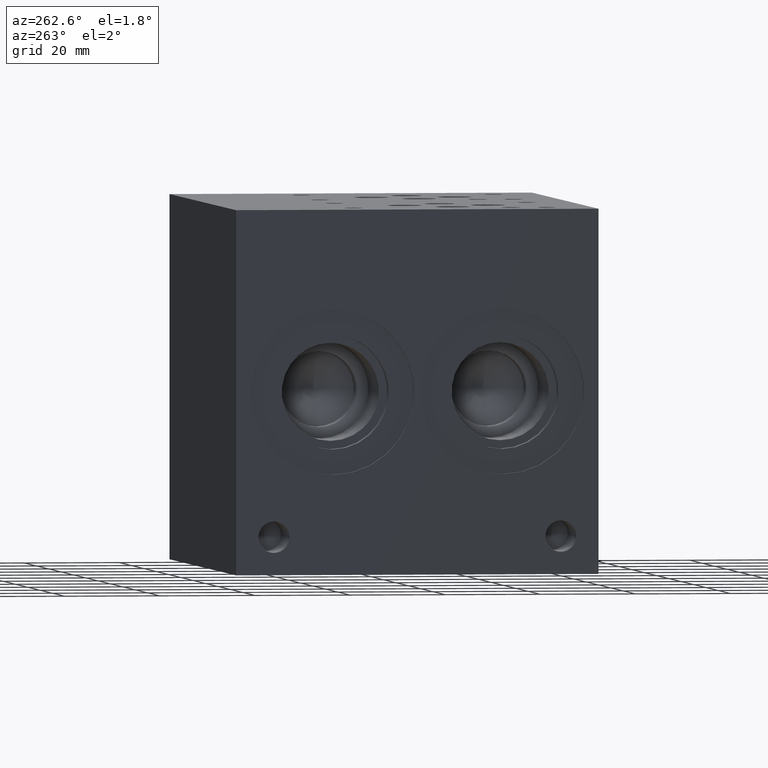
[diagram: clean part render]
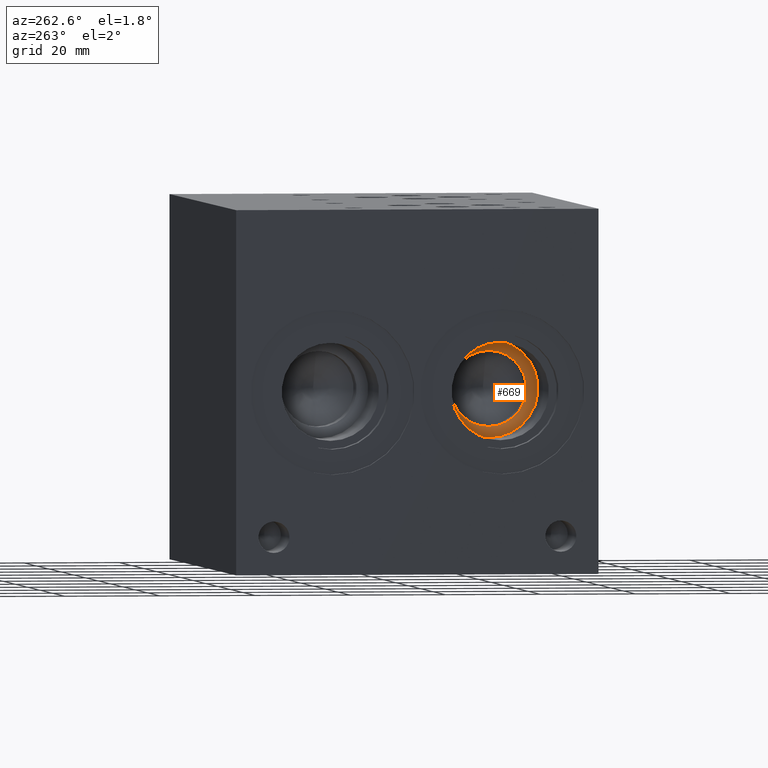
[diagram: same view with one face highlighted and labeled with its STEP entity id]
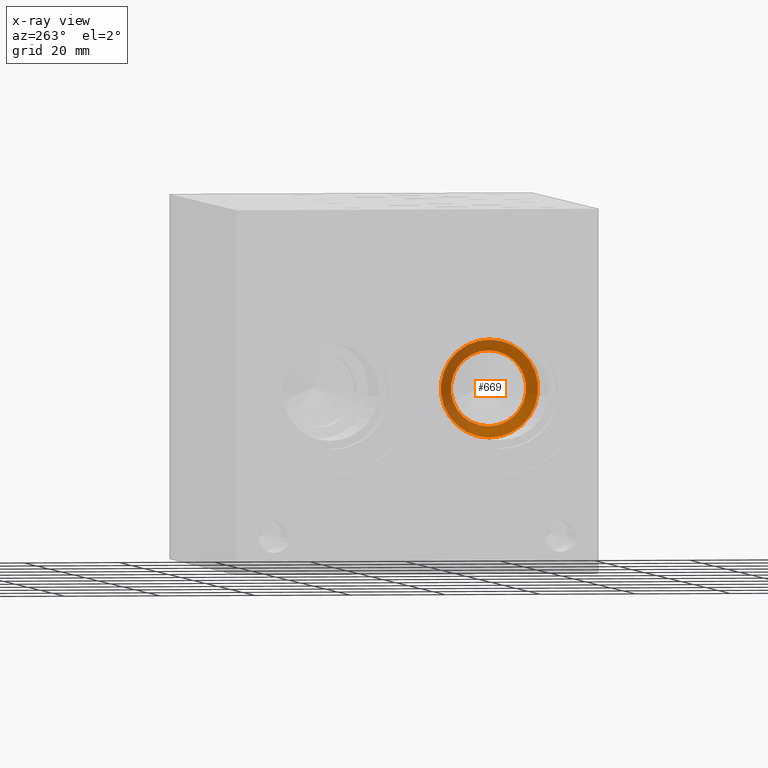
[diagram: x-ray of the same camera — body ghosted, the highlighted face saturated]
A machine part, auxiliary view. The second image highlights one B-rep face of the part: STEP entity #669.
The next image is the same camera in x-ray: the body ghosted, the highlighted face saturated — about 34% of this face is hidden behind the body in this view.
In plain terms, the highlighted conical surface has half-angle 60 deg.
Its self-contained STEP definition (entity closure, byte-faithful):
#635=CARTESIAN_POINT('',(22.112682200000002,20.243800000000004,46.037500000000009));
#636=VERTEX_POINT('',#635);
#637=CARTESIAN_POINT('',(22.112682200000002,20.243800000000004,38.100000000000009));
#638=DIRECTION('',(-1.0,0.0,0.0));
#639=DIRECTION('',(0.0,0.0,1.0));
#640=AXIS2_PLACEMENT_3D('',#637,#638,#639);
#641=CIRCLE('',#640,7.937500000000002);
#642=EDGE_CURVE('',#636,#636,#641,.T.);
#650=CARTESIAN_POINT('',(21.45277085,20.243800000000004,38.100000000000009));
#651=DIRECTION('',(-1.0,0.0,0.0));
#652=DIRECTION('',(0.0,0.0,1.0));
#653=AXIS2_PLACEMENT_3D('',#650,#651,#652);
#654=CONICAL_SURFACE('',#653,9.080500000000003,60.000000288875349);
#655=CARTESIAN_POINT('',(20.792859499999999,20.243800000000004,48.32350000000001));
#656=VERTEX_POINT('',#655);
#657=CARTESIAN_POINT('',(20.792859499999999,20.243800000000004,38.100000000000009));
#658=DIRECTION('',(-1.0,0.0,0.0));
#659=DIRECTION('',(0.0,0.0,1.0));
#660=AXIS2_PLACEMENT_3D('',#657,#658,#659);
#661=CIRCLE('',#660,10.223500000000003);
#662=EDGE_CURVE('',#656,#656,#661,.T.);
#663=ORIENTED_EDGE('',*,*,#662,.T.);
#664=EDGE_LOOP('',(#663));
#665=FACE_OUTER_BOUND('',#664,.T.);
#666=ORIENTED_EDGE('',*,*,#642,.F.);
#667=EDGE_LOOP('',(#666));
#668=FACE_BOUND('',#667,.T.);
#669=ADVANCED_FACE('',(#665,#668),#654,.F.);